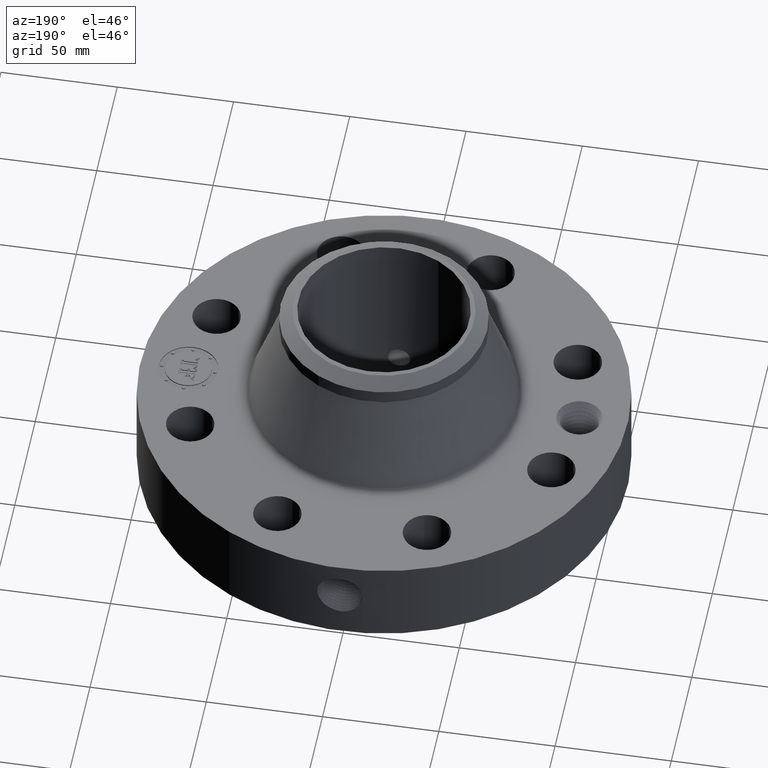
[diagram: clean part render]
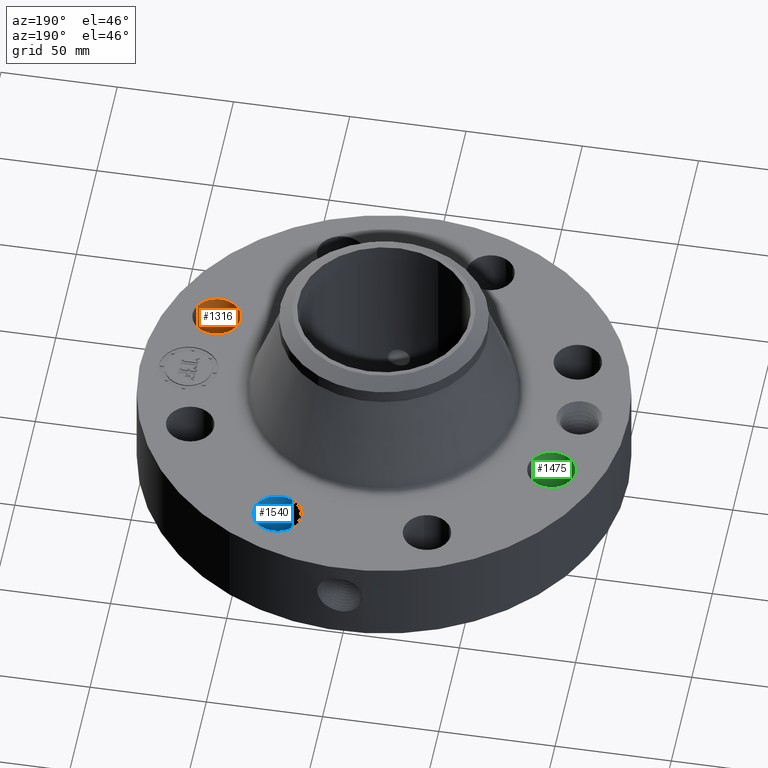
[diagram: same view with three faces highlighted in distinct colors, each labeled with its STEP entity id]
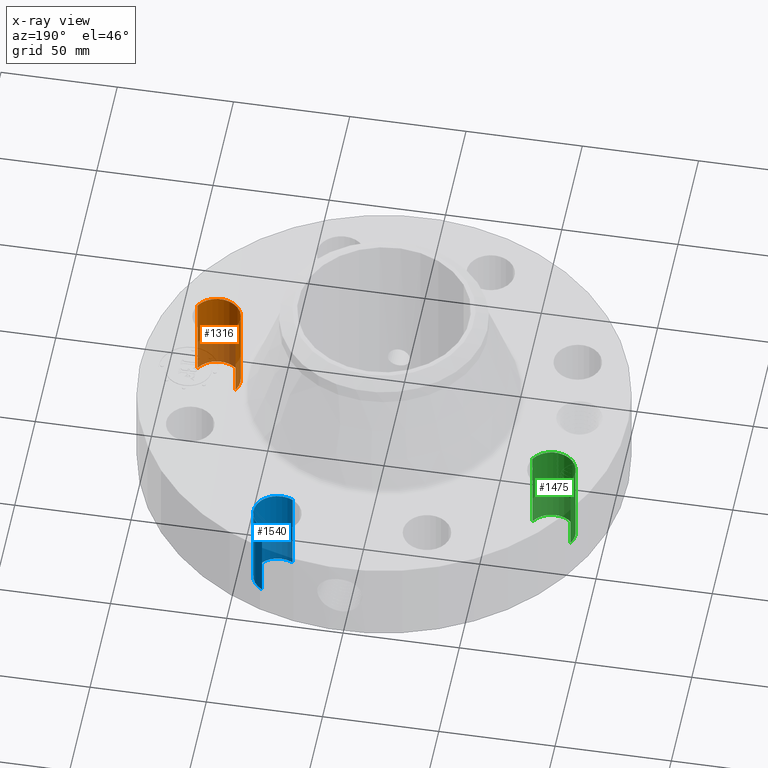
[diagram: x-ray of the same camera — body ghosted, the three highlighted faces saturated]
A machine part, auxiliary view with three faces highlighted in distinct colors.
The next image is the same camera in x-ray (body ghosted, the three faces saturated) — at least one of them is partly hidden behind the body in this view.
Their STEP definitions:

[orange] entity #1316 — the highlighted cylindrical surface (edge-blend (fillet) strip) has radius 10.287 mm, axis along (0, -0, -1).
#224=AXIS2_PLACEMENT_3D('Circle Axis2P3D',#222,#223,$) ;
#550=AXIS2_PLACEMENT_3D('Circle Axis2P3D',#548,#549,$) ;
#1298=AXIS2_PLACEMENT_3D('Cylinder Axis2P3D',#1295,#1296,#1297) ;
#222=CARTESIAN_POINT('Axis2P3D Location',(3.05804125262,-1.26668216113,0.0600000000002)) ;
#226=CARTESIAN_POINT('Vertex',(3.41346219019,-1.46084950427,0.0600000000002)) ;
#228=CARTESIAN_POINT('Vertex',(2.70262031506,-1.072514818,0.0600000000002)) ;
#543=CARTESIAN_POINT('Vertex',(2.70262031506,-1.072514818,1.56000000001)) ;
#545=CARTESIAN_POINT('Vertex',(3.41346219019,-1.46084950427,1.56000000001)) ;
#548=CARTESIAN_POINT('Axis2P3D Location',(3.05804125262,-1.26668216113,1.56000000001)) ;
#1295=CARTESIAN_POINT('Axis2P3D Location',(3.05804125262,-1.26668216113,1.55606299213)) ;
#1300=CARTESIAN_POINT('Line Origine',(3.41346219019,-1.46084950427,0.810000000003)) ;
#1305=CARTESIAN_POINT('Line Origine',(2.70262031506,-1.072514818,0.810000000003)) ;
#223=DIRECTION('Axis2P3D Direction',(0.,0.,-0.0393700787402)) ;
#549=DIRECTION('Axis2P3D Direction',(0.,0.,-0.0393700787402)) ;
#1296=DIRECTION('Axis2P3D Direction',(0.,-0.,-0.0393700787402)) ;
#1297=DIRECTION('Axis2P3D XDirection',(-0.0345504945626,0.0188750212049,0.)) ;
#1301=DIRECTION('Vector Direction',(0.,0.,-0.0393700787402)) ;
#1306=DIRECTION('Vector Direction',(0.,0.,-0.0393700787402)) ;
#1302=VECTOR('Line Direction',#1301,0.0393700787402) ;
#1307=VECTOR('Line Direction',#1306,0.0393700787402) ;
#1311=ORIENTED_EDGE('',*,*,#1304,.F.) ;
#1312=ORIENTED_EDGE('',*,*,#230,.T.) ;
#1313=ORIENTED_EDGE('',*,*,#1309,.T.) ;
#1314=ORIENTED_EDGE('',*,*,#552,.F.) ;
#1316=ADVANCED_FACE('PartBody',(#1315),#1299,.F.) ;
#225=CIRCLE('generated circle',#224,0.405000000002) ;
#551=CIRCLE('generated circle',#550,0.405000000002) ;
#1299=CYLINDRICAL_SURFACE('generated cylinder',#1298,0.405000000002) ;
#230=EDGE_CURVE('',#227,#229,#225,.T.) ;
#552=EDGE_CURVE('',#546,#544,#551,.T.) ;
#1304=EDGE_CURVE('',#227,#546,#1303,.F.) ;
#1309=EDGE_CURVE('',#229,#544,#1308,.F.) ;
#1310=EDGE_LOOP('',(#1311,#1312,#1313,#1314)) ;
#1315=FACE_OUTER_BOUND('',#1310,.T.) ;
#1303=LINE('Line',#1300,#1302) ;
#1308=LINE('Line',#1305,#1307) ;
#227=VERTEX_POINT('',#226) ;
#229=VERTEX_POINT('',#228) ;
#544=VERTEX_POINT('',#543) ;
#546=VERTEX_POINT('',#545) ;

[blue] entity #1540 — the highlighted cylindrical surface (edge-blend (fillet) strip) has radius 10.287 mm, axis along (0, 0, -1).
#359=AXIS2_PLACEMENT_3D('Circle Axis2P3D',#357,#358,$) ;
#667=AXIS2_PLACEMENT_3D('Circle Axis2P3D',#665,#666,$) ;
#1515=AXIS2_PLACEMENT_3D('Cylinder Axis2P3D',#1512,#1513,#1514) ;
#352=CARTESIAN_POINT('Vertex',(1.072514818,2.70262031506,0.0600000000002)) ;
#354=CARTESIAN_POINT('Vertex',(1.46084950427,3.41346219019,0.0600000000002)) ;
#357=CARTESIAN_POINT('Axis2P3D Location',(1.26668216113,3.05804125262,0.0600000000002)) ;
#665=CARTESIAN_POINT('Axis2P3D Location',(1.26668216113,3.05804125262,1.56000000001)) ;
#669=CARTESIAN_POINT('Vertex',(1.46084950427,3.41346219019,1.56000000001)) ;
#671=CARTESIAN_POINT('Vertex',(1.072514818,2.70262031506,1.56000000001)) ;
#1512=CARTESIAN_POINT('Axis2P3D Location',(1.26668216113,3.05804125262,1.55606299213)) ;
#1517=CARTESIAN_POINT('Line Origine',(1.072514818,2.70262031506,0.810000000003)) ;
#1522=CARTESIAN_POINT('Line Origine',(1.46084950427,3.41346219019,0.810000000003)) ;
#358=DIRECTION('Axis2P3D Direction',(0.,0.,-0.0393700787402)) ;
#666=DIRECTION('Axis2P3D Direction',(0.,0.,-0.0393700787402)) ;
#1513=DIRECTION('Axis2P3D Direction',(0.,0.,-0.0393700787402)) ;
#1514=DIRECTION('Axis2P3D XDirection',(0.0188750212049,0.0345504945626,0.)) ;
#1518=DIRECTION('Vector Direction',(0.,0.,-0.0393700787402)) ;
#1523=DIRECTION('Vector Direction',(0.,0.,-0.0393700787402)) ;
#1519=VECTOR('Line Direction',#1518,0.0393700787402) ;
#1524=VECTOR('Line Direction',#1523,0.0393700787402) ;
#1535=ORIENTED_EDGE('',*,*,#1526,.F.) ;
#1536=ORIENTED_EDGE('',*,*,#361,.T.) ;
#1537=ORIENTED_EDGE('',*,*,#1521,.T.) ;
#1538=ORIENTED_EDGE('',*,*,#673,.F.) ;
#1540=ADVANCED_FACE('PartBody',(#1539),#1516,.F.) ;
#360=CIRCLE('generated circle',#359,0.405000000002) ;
#668=CIRCLE('generated circle',#667,0.405000000002) ;
#1516=CYLINDRICAL_SURFACE('generated cylinder',#1515,0.405000000002) ;
#361=EDGE_CURVE('',#355,#353,#360,.T.) ;
#673=EDGE_CURVE('',#670,#672,#668,.T.) ;
#1521=EDGE_CURVE('',#353,#672,#1520,.F.) ;
#1526=EDGE_CURVE('',#355,#670,#1525,.F.) ;
#1534=EDGE_LOOP('',(#1535,#1536,#1537,#1538)) ;
#1539=FACE_OUTER_BOUND('',#1534,.T.) ;
#1520=LINE('Line',#1517,#1519) ;
#1525=LINE('Line',#1522,#1524) ;
#353=VERTEX_POINT('',#352) ;
#355=VERTEX_POINT('',#354) ;
#670=VERTEX_POINT('',#669) ;
#672=VERTEX_POINT('',#671) ;

[green] entity #1475 — the highlighted cylindrical surface (edge-blend (fillet) strip) has radius 10.287 mm, axis along (-0, 0, -1).
#314=AXIS2_PLACEMENT_3D('Circle Axis2P3D',#312,#313,$) ;
#640=AXIS2_PLACEMENT_3D('Circle Axis2P3D',#638,#639,$) ;
#1457=AXIS2_PLACEMENT_3D('Cylinder Axis2P3D',#1454,#1455,#1456) ;
#312=CARTESIAN_POINT('Axis2P3D Location',(-3.05804125262,1.26668216113,0.0600000000002)) ;
#316=CARTESIAN_POINT('Vertex',(-2.70262031506,1.072514818,0.0600000000002)) ;
#318=CARTESIAN_POINT('Vertex',(-3.41346219019,1.46084950427,0.0600000000002)) ;
#633=CARTESIAN_POINT('Vertex',(-3.41346219019,1.46084950427,1.56000000001)) ;
#635=CARTESIAN_POINT('Vertex',(-2.70262031506,1.072514818,1.56000000001)) ;
#638=CARTESIAN_POINT('Axis2P3D Location',(-3.05804125262,1.26668216113,1.56000000001)) ;
#1454=CARTESIAN_POINT('Axis2P3D Location',(-3.05804125262,1.26668216113,1.55606299213)) ;
#1459=CARTESIAN_POINT('Line Origine',(-2.70262031506,1.072514818,0.810000000003)) ;
#1464=CARTESIAN_POINT('Line Origine',(-3.41346219019,1.46084950427,0.810000000003)) ;
#313=DIRECTION('Axis2P3D Direction',(0.,0.,-0.0393700787402)) ;
#639=DIRECTION('Axis2P3D Direction',(0.,0.,-0.0393700787402)) ;
#1455=DIRECTION('Axis2P3D Direction',(-0.,0.,-0.0393700787402)) ;
#1456=DIRECTION('Axis2P3D XDirection',(-0.0345504945626,0.0188750212049,0.)) ;
#1460=DIRECTION('Vector Direction',(0.,0.,-0.0393700787402)) ;
#1465=DIRECTION('Vector Direction',(0.,0.,-0.0393700787402)) ;
#1461=VECTOR('Line Direction',#1460,0.0393700787402) ;
#1466=VECTOR('Line Direction',#1465,0.0393700787402) ;
#1470=ORIENTED_EDGE('',*,*,#1463,.F.) ;
#1471=ORIENTED_EDGE('',*,*,#320,.T.) ;
#1472=ORIENTED_EDGE('',*,*,#1468,.T.) ;
#1473=ORIENTED_EDGE('',*,*,#642,.F.) ;
#1475=ADVANCED_FACE('PartBody',(#1474),#1458,.F.) ;
#315=CIRCLE('generated circle',#314,0.405000000002) ;
#641=CIRCLE('generated circle',#640,0.405000000002) ;
#1458=CYLINDRICAL_SURFACE('generated cylinder',#1457,0.405000000002) ;
#320=EDGE_CURVE('',#317,#319,#315,.T.) ;
#642=EDGE_CURVE('',#636,#634,#641,.T.) ;
#1463=EDGE_CURVE('',#317,#636,#1462,.F.) ;
#1468=EDGE_CURVE('',#319,#634,#1467,.F.) ;
#1469=EDGE_LOOP('',(#1470,#1471,#1472,#1473)) ;
#1474=FACE_OUTER_BOUND('',#1469,.T.) ;
#1462=LINE('Line',#1459,#1461) ;
#1467=LINE('Line',#1464,#1466) ;
#317=VERTEX_POINT('',#316) ;
#319=VERTEX_POINT('',#318) ;
#634=VERTEX_POINT('',#633) ;
#636=VERTEX_POINT('',#635) ;